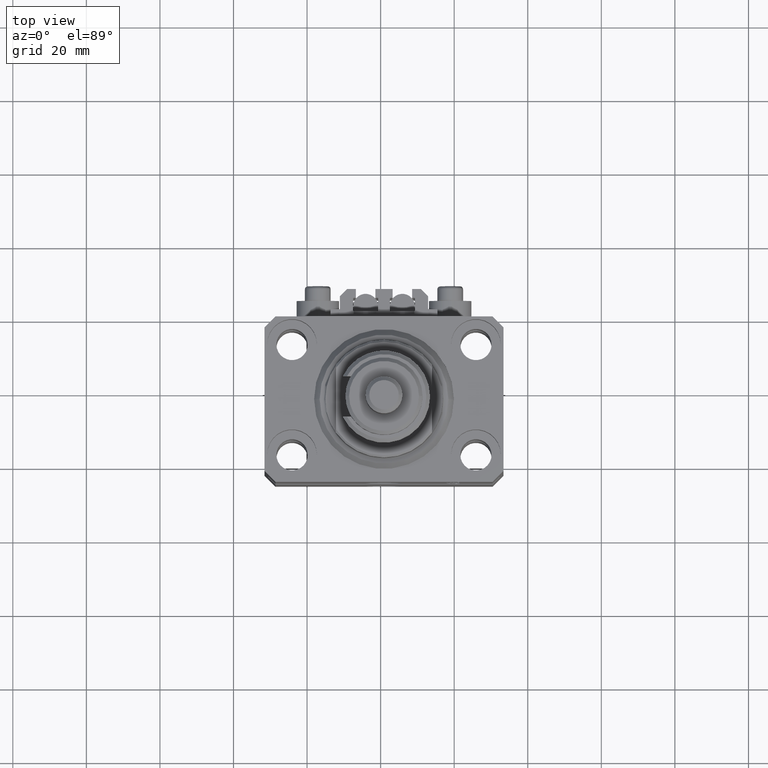
[diagram: clean part render]
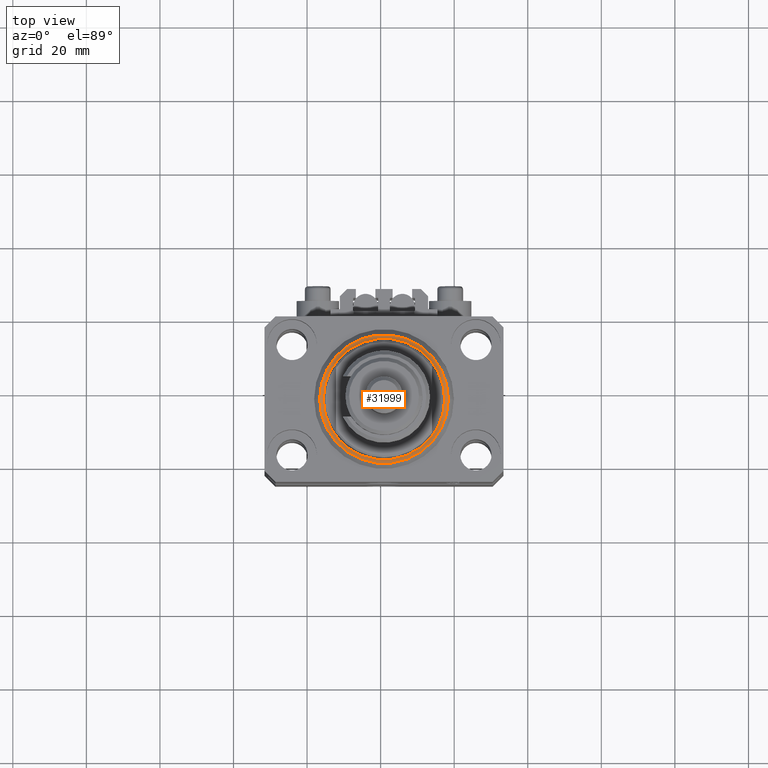
[diagram: same view with one face highlighted and labeled with its STEP entity id]
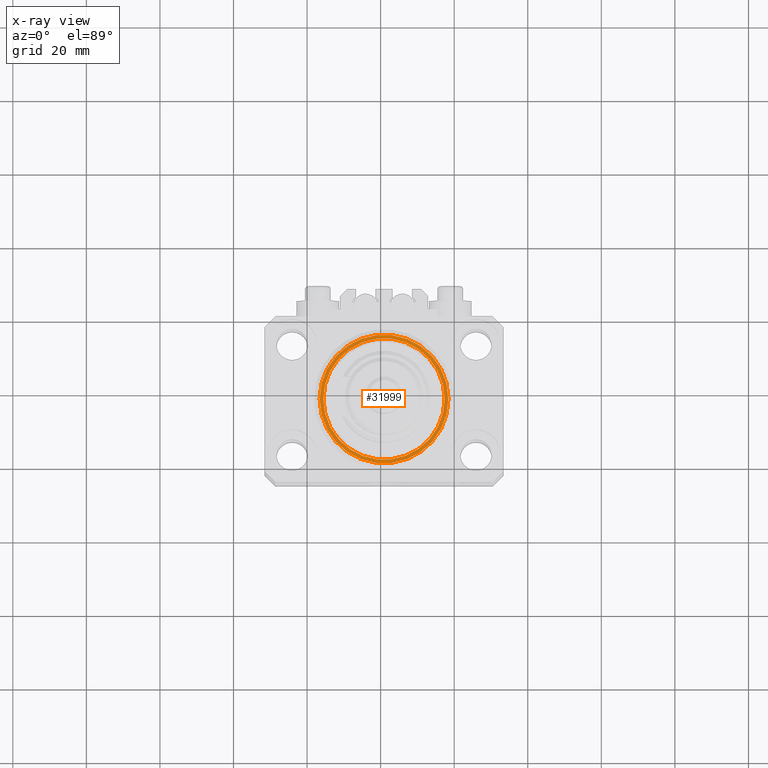
[diagram: x-ray of the same camera — body ghosted, the highlighted face saturated]
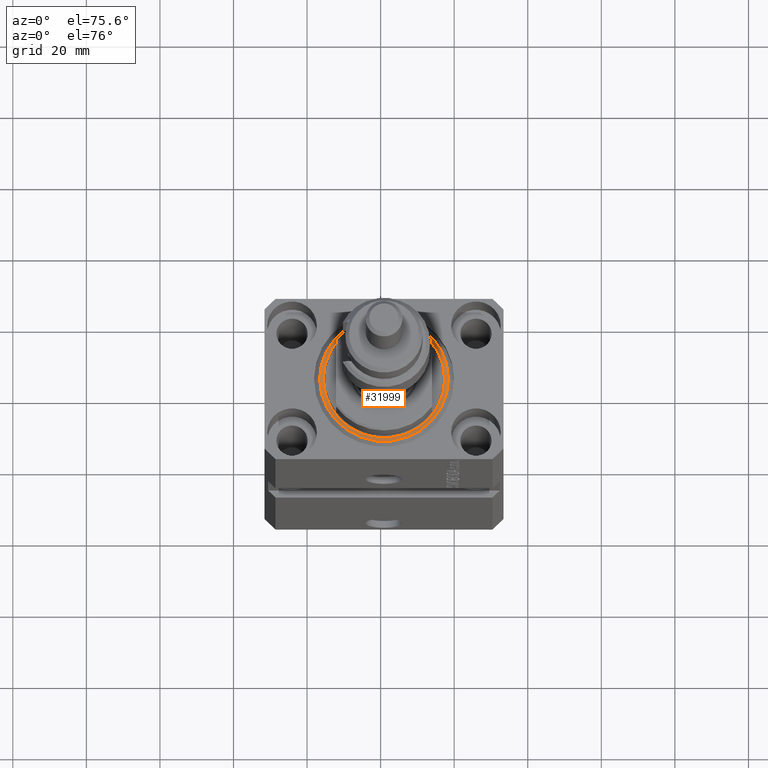
[diagram: same view with one face highlighted and labeled with its STEP entity id]
A machine part, top view. The second image highlights one B-rep face of the part: STEP entity #31999.
The next image is the same camera in x-ray: the body ghosted, the highlighted face saturated — about 0% of this face is hidden behind the body in this view.
A second angle (auxiliary view) of the same face is appended — the face is thin or edge-on in the first view.
In plain terms, the highlighted planar face has unit normal (0, 0, -1).
Its self-contained STEP definition (entity closure, byte-faithful):
#891 = AXIS2_PLACEMENT_3D ( 'NONE', #40903, #36320, #44255 ) ;
#3401 = DIRECTION ( 'NONE',  ( 0.000000000000000000, 0.000000000000000000, 1.000000000000000000 ) ) ;
#3735 = DIRECTION ( 'NONE',  ( -0.000000000000000000, -0.000000000000000000, -1.000000000000000000 ) ) ;
#4055 = EDGE_LOOP ( 'NONE', ( #36762, #4870 ) ) ;
#4612 = CARTESIAN_POINT ( 'NONE',  ( 16.50000000000000000, 0.000000000000000000, 2.168404344971008868E-16 ) ) ;
#4870 = ORIENTED_EDGE ( 'NONE', *, *, #48924, .T. ) ;
#6501 = ORIENTED_EDGE ( 'NONE', *, *, #12382, .T. ) ;
#6627 = CIRCLE ( 'NONE', #33715, 17.49999999999999289 ) ;
#8104 = CIRCLE ( 'NONE', #8909, 17.49999999999999289 ) ;
#8909 = AXIS2_PLACEMENT_3D ( 'NONE', #17212, #41337, #32876 ) ;
#9466 = DIRECTION ( 'NONE',  ( 0.000000000000000000, 0.000000000000000000, 1.000000000000000000 ) ) ;
#10343 = CARTESIAN_POINT ( 'NONE',  ( 17.49999999999999289, 0.000000000000000000, 0.000000000000000000 ) ) ;
#12274 = AXIS2_PLACEMENT_3D ( 'NONE', #46809, #3401, #14978 ) ;
#12382 = EDGE_CURVE ( 'NONE', #23365, #41058, #8104, .T. ) ;
#14978 = DIRECTION ( 'NONE',  ( 1.000000000000000000, 0.000000000000000000, 0.000000000000000000 ) ) ;
#16635 = EDGE_CURVE ( 'NONE', #37821, #38265, #18885, .T. ) ;
#17212 = CARTESIAN_POINT ( 'NONE',  ( 0.000000000000000000, 0.000000000000000000, 0.000000000000000000 ) ) ;
#18885 = CIRCLE ( 'NONE', #12274, 16.50000000000000000 ) ;
#19399 = AXIS2_PLACEMENT_3D ( 'NONE', #48500, #9466, #32851 ) ;
#21197 = EDGE_LOOP ( 'NONE', ( #6501, #44709 ) ) ;
#21977 = CARTESIAN_POINT ( 'NONE',  ( -16.50000000000000000, 2.020667218593133100E-15, 2.168404344971008868E-16 ) ) ;
#23365 = VERTEX_POINT ( 'NONE', #10343 ) ;
#24335 = CARTESIAN_POINT ( 'NONE',  ( -17.49999999999999289, 2.234980408443919215E-15, 0.000000000000000000 ) ) ;
#27658 = CARTESIAN_POINT ( 'NONE',  ( 0.000000000000000000, 0.000000000000000000, 0.000000000000000000 ) ) ;
#29777 = PLANE ( 'NONE',  #19399 ) ;
#31999 = ADVANCED_FACE ( 'NONE', ( #41566, #48756 ), #29777, .F. ) ;
#32851 = DIRECTION ( 'NONE',  ( 1.000000000000000000, 0.000000000000000000, -0.000000000000000000 ) ) ;
#32876 = DIRECTION ( 'NONE',  ( 1.000000000000000000, 0.000000000000000000, 0.000000000000000000 ) ) ;
#33715 = AXIS2_PLACEMENT_3D ( 'NONE', #27658, #3735, #35617 ) ;
#35617 = DIRECTION ( 'NONE',  ( 1.000000000000000000, 0.000000000000000000, 0.000000000000000000 ) ) ;
#36320 = DIRECTION ( 'NONE',  ( 0.000000000000000000, 0.000000000000000000, 1.000000000000000000 ) ) ;
#36762 = ORIENTED_EDGE ( 'NONE', *, *, #16635, .T. ) ;
#37821 = VERTEX_POINT ( 'NONE', #4612 ) ;
#38265 = VERTEX_POINT ( 'NONE', #21977 ) ;
#40903 = CARTESIAN_POINT ( 'NONE',  ( 0.000000000000000000, 0.000000000000000000, 0.000000000000000000 ) ) ;
#41058 = VERTEX_POINT ( 'NONE', #24335 ) ;
#41337 = DIRECTION ( 'NONE',  ( -0.000000000000000000, -0.000000000000000000, -1.000000000000000000 ) ) ;
#41566 = FACE_BOUND ( 'NONE', #4055, .T. ) ;
#44255 = DIRECTION ( 'NONE',  ( 1.000000000000000000, 0.000000000000000000, 0.000000000000000000 ) ) ;
#44709 = ORIENTED_EDGE ( 'NONE', *, *, #47580, .T. ) ;
#45212 = CIRCLE ( 'NONE', #891, 16.50000000000000000 ) ;
#46809 = CARTESIAN_POINT ( 'NONE',  ( 0.000000000000000000, 0.000000000000000000, 0.000000000000000000 ) ) ;
#47580 = EDGE_CURVE ( 'NONE', #41058, #23365, #6627, .T. ) ;
#48500 = CARTESIAN_POINT ( 'NONE',  ( 0.000000000000000000, 0.000000000000000000, 0.000000000000000000 ) ) ;
#48756 = FACE_OUTER_BOUND ( 'NONE', #21197, .T. ) ;
#48924 = EDGE_CURVE ( 'NONE', #38265, #37821, #45212, .T. ) ;